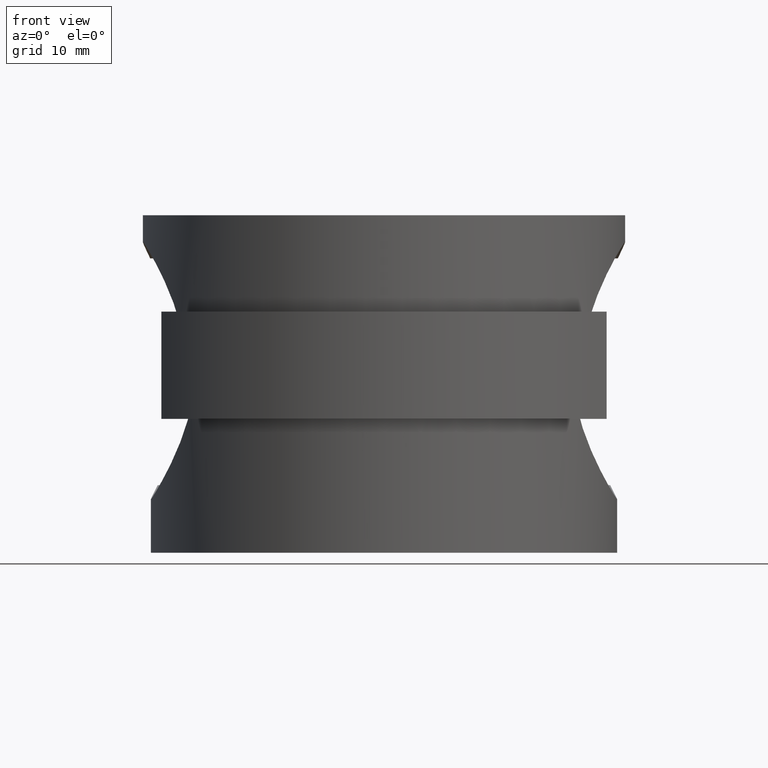
[diagram: clean part render]
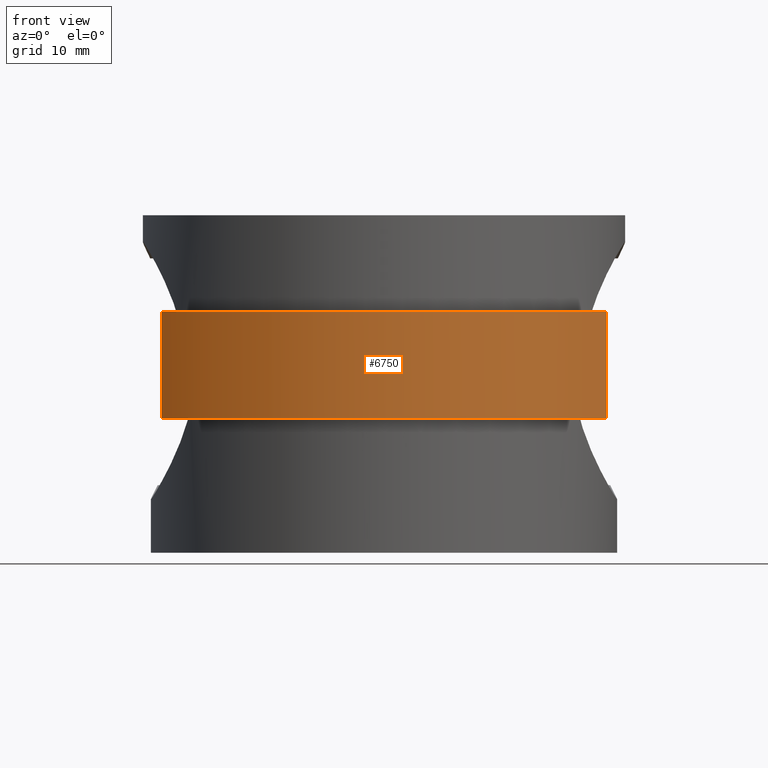
[diagram: same view with one face highlighted and labeled with its STEP entity id]
A machine part, front view. The second image highlights one B-rep face of the part: STEP entity #6750.
In plain terms, the highlighted cylindrical surface (partial cylindrical patch) has radius 24.5 mm, axis along (0, 0, -1).
Its self-contained STEP definition (entity closure, byte-faithful):
#129 = DIRECTION ( 'NONE',  ( -0.0000000000000000000, -0.0000000000000000000, 1.000000000000000000 ) ) ;
#369 = CARTESIAN_POINT ( 'NONE',  ( 20.76655965729521100, -13.00000000000000200, -5.000000000000000000 ) ) ;
#593 = DIRECTION ( 'NONE',  ( 1.000000000000000000, 0.0000000000000000000, 0.0000000000000000000 ) ) ;
#1047 = DIRECTION ( 'NONE',  ( -1.000000000000000000, 0.0000000000000000000, 0.0000000000000000000 ) ) ;
#1394 = VERTEX_POINT ( 'NONE', #12115 ) ;
#1458 = EDGE_LOOP ( 'NONE', ( #10039, #14187, #8091, #4887 ) ) ;
#1639 = VECTOR ( 'NONE', #5487, 1000.000000000000000 ) ;
#1837 = CIRCLE ( 'NONE', #7070, 24.50000000000002100 ) ;
#3137 = EDGE_CURVE ( 'NONE', #14924, #1394, #11073, .T. ) ;
#3441 = DIRECTION ( 'NONE',  ( -1.000000000000000000, 0.0000000000000000000, 0.0000000000000000000 ) ) ;
#3503 = CARTESIAN_POINT ( 'NONE',  ( -20.76655965729521100, -13.00000000000000200, 5.000000000000000000 ) ) ;
#4159 = CARTESIAN_POINT ( 'NONE',  ( -20.76655965729521100, -13.00000000000000200, -5.000000000000000000 ) ) ;
#4584 = AXIS2_PLACEMENT_3D ( 'NONE', #5225, #129, #593 ) ;
#4599 = CARTESIAN_POINT ( 'NONE',  ( 0.0000000000000000000, 0.0000000000000000000, -5.000000000000000000 ) ) ;
#4887 = ORIENTED_EDGE ( 'NONE', *, *, #3137, .T. ) ;
#5225 = CARTESIAN_POINT ( 'NONE',  ( 0.0000000000000000000, 0.0000000000000000000, -5.000000000000000000 ) ) ;
#5487 = DIRECTION ( 'NONE',  ( -0.0000000000000000000, -0.0000000000000000000, 1.000000000000000000 ) ) ;
#6284 = EDGE_CURVE ( 'NONE', #1394, #7497, #11074, .T. ) ;
#6679 = VECTOR ( 'NONE', #9016, 1000.000000000000000 ) ;
#6750 = ADVANCED_FACE ( 'NONE', ( #8377 ), #13907, .T. ) ;
#7070 = AXIS2_PLACEMENT_3D ( 'NONE', #4599, #12143, #1047 ) ;
#7361 = LINE ( 'NONE', #4159, #1639 ) ;
#7497 = VERTEX_POINT ( 'NONE', #3503 ) ;
#8091 = ORIENTED_EDGE ( 'NONE', *, *, #12166, .F. ) ;
#8277 = CARTESIAN_POINT ( 'NONE',  ( 20.76655965729521100, -13.00000000000000200, -5.000000000000000000 ) ) ;
#8377 = FACE_OUTER_BOUND ( 'NONE', #1458, .T. ) ;
#9016 = DIRECTION ( 'NONE',  ( -0.0000000000000000000, -0.0000000000000000000, 1.000000000000000000 ) ) ;
#9695 = DIRECTION ( 'NONE',  ( 0.0000000000000000000, 0.0000000000000000000, -1.000000000000000000 ) ) ;
#10039 = ORIENTED_EDGE ( 'NONE', *, *, #6284, .T. ) ;
#10594 = CARTESIAN_POINT ( 'NONE',  ( -20.76655965729521100, -13.00000000000000200, -5.000000000000000000 ) ) ;
#10968 = CARTESIAN_POINT ( 'NONE',  ( 0.0000000000000000000, 0.0000000000000000000, 5.000000000000000000 ) ) ;
#11073 = LINE ( 'NONE', #369, #6679 ) ;
#11074 = CIRCLE ( 'NONE', #12351, 24.50000000000002100 ) ;
#11919 = EDGE_CURVE ( 'NONE', #12851, #7497, #7361, .T. ) ;
#12115 = CARTESIAN_POINT ( 'NONE',  ( 20.76655965729521100, -13.00000000000000200, 5.000000000000000000 ) ) ;
#12143 = DIRECTION ( 'NONE',  ( 0.0000000000000000000, 0.0000000000000000000, -1.000000000000000000 ) ) ;
#12166 = EDGE_CURVE ( 'NONE', #14924, #12851, #1837, .T. ) ;
#12351 = AXIS2_PLACEMENT_3D ( 'NONE', #10968, #9695, #3441 ) ;
#12851 = VERTEX_POINT ( 'NONE', #10594 ) ;
#13907 = CYLINDRICAL_SURFACE ( 'NONE', #4584, 24.50000000000002100 ) ;
#14187 = ORIENTED_EDGE ( 'NONE', *, *, #11919, .F. ) ;
#14924 = VERTEX_POINT ( 'NONE', #8277 ) ;